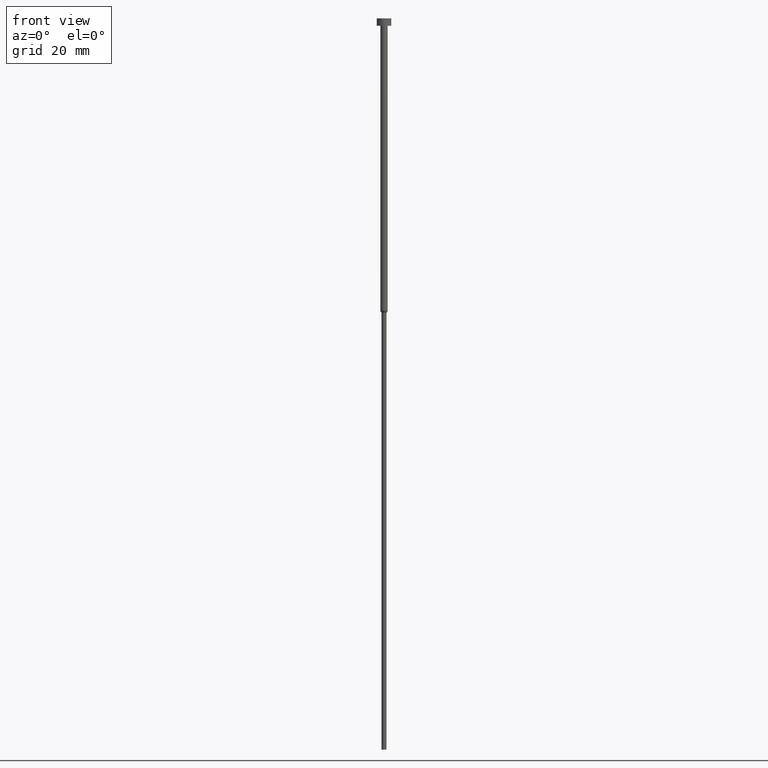
[diagram: clean part render]
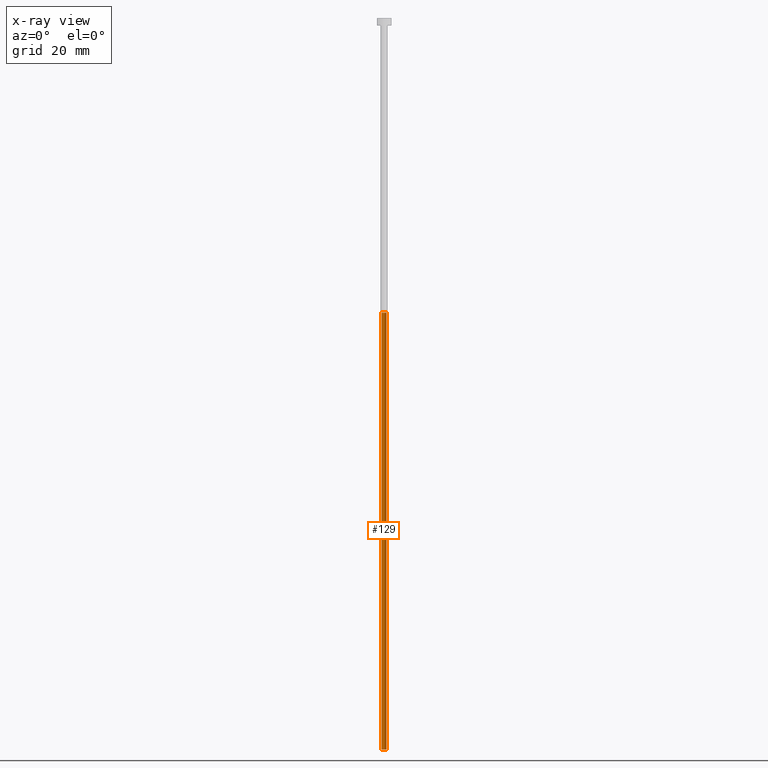
[diagram: x-ray — body ghosted, one internal face saturated and labeled with its STEP entity id]
A machine part, front view, then the same camera in x-ray: the body is ghosted and one INTERNAL B-rep face — a face not visible from any outside direction — is saturated and labeled: STEP entity #129.
In plain terms, the highlighted cylindrical surface (edge-blend (fillet) strip) has radius 0.7 mm, axis along (-0, -0, 1).
Its self-contained STEP definition (entity closure, byte-faithful):
#9 = VERTEX_POINT ( 'NONE', #250 ) ;
#10 = FACE_OUTER_BOUND ( 'NONE', #89, .T. ) ;
#13 = CARTESIAN_POINT ( 'NONE',  ( 0.000000000000000000, 0.000000000000000000, 0.000000000000000000 ) ) ;
#43 = DIRECTION ( 'NONE',  ( 1.000000000000000000, 0.000000000000000000, 0.000000000000000000 ) ) ;
#52 = DIRECTION ( 'NONE',  ( -0.000000000000000000, -0.000000000000000000, 1.000000000000000000 ) ) ;
#82 = AXIS2_PLACEMENT_3D ( 'NONE', #342, #96, #106 ) ;
#87 = EDGE_CURVE ( 'NONE', #202, #175, #329, .T. ) ;
#89 = EDGE_LOOP ( 'NONE', ( #321, #230, #256, #317 ) ) ;
#92 = VERTEX_POINT ( 'NONE', #147 ) ;
#96 = DIRECTION ( 'NONE',  ( -0.000000000000000000, -0.000000000000000000, 1.000000000000000000 ) ) ;
#102 = AXIS2_PLACEMENT_3D ( 'NONE', #160, #355, #252 ) ;
#106 = DIRECTION ( 'NONE',  ( 1.000000000000000000, 0.000000000000000000, 0.000000000000000000 ) ) ;
#129 = ADVANCED_FACE ( 'NONE', ( #10 ), #315, .T. ) ;
#147 = CARTESIAN_POINT ( 'NONE',  ( 0.6999999999999998446, 0.000000000000000000, -200.0000000000000000 ) ) ;
#160 = CARTESIAN_POINT ( 'NONE',  ( 0.000000000000000000, 0.000000000000000000, -200.0000000000000000 ) ) ;
#161 = LINE ( 'NONE', #281, #289 ) ;
#162 = VECTOR ( 'NONE', #242, 1000.000000000000000 ) ;
#175 = VERTEX_POINT ( 'NONE', #338 ) ;
#184 = LINE ( 'NONE', #337, #162 ) ;
#187 = DIRECTION ( 'NONE',  ( -0.000000000000000000, -0.000000000000000000, 1.000000000000000000 ) ) ;
#202 = VERTEX_POINT ( 'NONE', #348 ) ;
#219 = EDGE_CURVE ( 'NONE', #92, #9, #295, .T. ) ;
#230 = ORIENTED_EDGE ( 'NONE', *, *, #288, .T. ) ;
#242 = DIRECTION ( 'NONE',  ( -0.000000000000000000, -0.000000000000000000, 1.000000000000000000 ) ) ;
#250 = CARTESIAN_POINT ( 'NONE',  ( -0.6999999999999998446, 8.572527594031470725E-17, -200.0000000000000000 ) ) ;
#252 = DIRECTION ( 'NONE',  ( 1.000000000000000000, 0.000000000000000000, 0.000000000000000000 ) ) ;
#256 = ORIENTED_EDGE ( 'NONE', *, *, #87, .F. ) ;
#281 = CARTESIAN_POINT ( 'NONE',  ( 0.6999999999999998446, 0.000000000000000000, 0.000000000000000000 ) ) ;
#288 = EDGE_CURVE ( 'NONE', #9, #175, #184, .T. ) ;
#289 = VECTOR ( 'NONE', #52, 1000.000000000000000 ) ;
#295 = CIRCLE ( 'NONE', #102, 0.6999999999999998446 ) ;
#303 = AXIS2_PLACEMENT_3D ( 'NONE', #13, #187, #43 ) ;
#315 = CYLINDRICAL_SURFACE ( 'NONE', #303, 0.6999999999999998446 ) ;
#317 = ORIENTED_EDGE ( 'NONE', *, *, #347, .F. ) ;
#321 = ORIENTED_EDGE ( 'NONE', *, *, #219, .T. ) ;
#329 = CIRCLE ( 'NONE', #82, 0.6999999999999998446 ) ;
#337 = CARTESIAN_POINT ( 'NONE',  ( -0.6999999999999998446, 8.572527594031470725E-17, 0.000000000000000000 ) ) ;
#338 = CARTESIAN_POINT ( 'NONE',  ( -0.6999999999999998446, 8.572527594031470725E-17, -80.51961524227066036 ) ) ;
#342 = CARTESIAN_POINT ( 'NONE',  ( 0.000000000000000000, 0.000000000000000000, -80.51961524227066036 ) ) ;
#347 = EDGE_CURVE ( 'NONE', #92, #202, #161, .T. ) ;
#348 = CARTESIAN_POINT ( 'NONE',  ( 0.6999999999999998446, 0.000000000000000000, -80.51961524227066036 ) ) ;
#355 = DIRECTION ( 'NONE',  ( -0.000000000000000000, -0.000000000000000000, 1.000000000000000000 ) ) ;